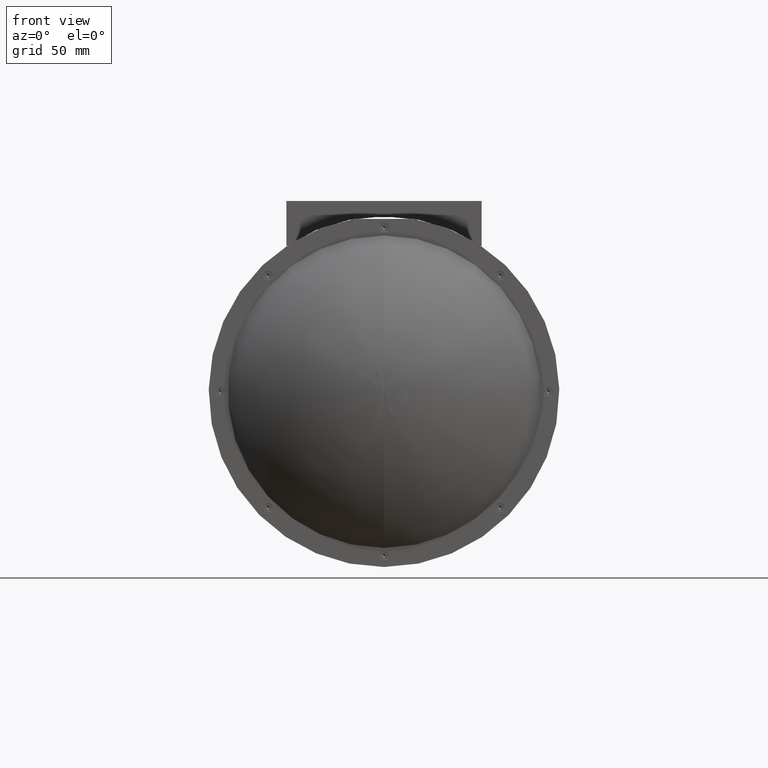
[diagram: clean part render]
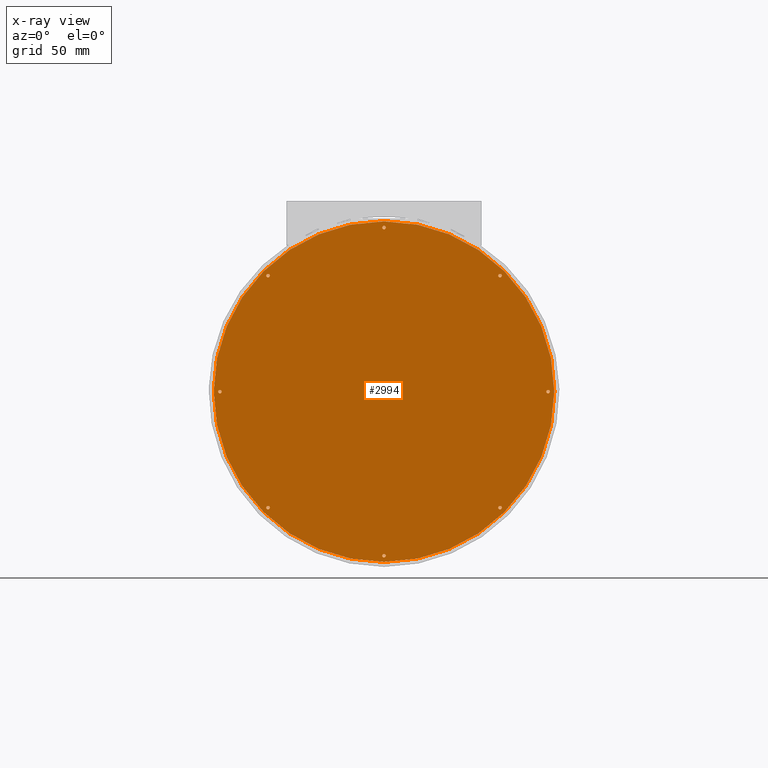
[diagram: x-ray — body ghosted, one internal face saturated and labeled with its STEP entity id]
A machine part, front view, then the same camera in x-ray: the body is ghosted and one INTERNAL B-rep face — a face not visible from any outside direction — is saturated and labeled: STEP entity #2994.
In plain terms, the highlighted planar face has unit normal (0, -1, 0).
Its self-contained STEP definition (entity closure, byte-faithful):
#28 = DIRECTION ( 'NONE',  ( 0.0000000000000000000, 0.0000000000000000000, -1.000000000000000000 ) ) ;
#317 = ORIENTED_EDGE ( 'NONE', *, *, #31842, .F. ) ;
#770 = EDGE_CURVE ( 'NONE', #14489, #25004, #29227, .T. ) ;
#842 = EDGE_CURVE ( 'NONE', #6582, #30998, #20655, .T. ) ;
#867 = EDGE_CURVE ( 'NONE', #3711, #26214, #6989, .T. ) ;
#878 = DIRECTION ( 'NONE',  ( 0.0000000000000000000, 0.0000000000000000000, -1.000000000000000000 ) ) ;
#1176 = CARTESIAN_POINT ( 'NONE',  ( -3.886536381357992731, -2.330622844625818146, -1.482054366152422142 ) ) ;
#1236 = CARTESIAN_POINT ( 'NONE',  ( 1.704238327027963074, -2.330622844625818146, 0.7637203422335082648 ) ) ;
#1281 = FACE_BOUND ( 'NONE', #19624, .T. ) ;
#1974 = DIRECTION ( 'NONE',  ( 0.0000000000000000000, -1.000000000000000000, 0.0000000000000000000 ) ) ;
#1979 = CIRCLE ( 'NONE', #37667, 0.03500000000000003803 ) ;
#2429 = CARTESIAN_POINT ( 'NONE',  ( -1.570761672972037504, -2.330622844625818146, 0.7987203422335082958 ) ) ;
#2810 = CARTESIAN_POINT ( 'NONE',  ( -1.570761672972036838, -2.330622844625818146, 4.198720342233507985 ) ) ;
#2882 = EDGE_CURVE ( 'NONE', #18780, #14841, #29286, .T. ) ;
#2971 = EDGE_LOOP ( 'NONE', ( #40063, #9384 ) ) ;
#2994 = ADVANCED_FACE ( 'NONE', ( #19142, #31297, #15358, #10724, #1281, #25192, #38810, #8199, #32131 ), #4861, .T. ) ;
#3013 = DIRECTION ( 'NONE',  ( 0.0000000000000000000, 0.0000000000000000000, -1.000000000000000000 ) ) ;
#3635 = DIRECTION ( 'NONE',  ( 0.0000000000000000000, 0.0000000000000000000, -1.000000000000000000 ) ) ;
#3711 = VERTEX_POINT ( 'NONE', #35145 ) ;
#3981 = ORIENTED_EDGE ( 'NONE', *, *, #5105, .F. ) ;
#4370 = CIRCLE ( 'NONE', #40768, 0.03500000000000003803 ) ;
#4623 = ORIENTED_EDGE ( 'NONE', *, *, #770, .F. ) ;
#4861 = PLANE ( 'NONE',  #26453 ) ;
#5105 = EDGE_CURVE ( 'NONE', #29748, #5290, #25497, .T. ) ;
#5121 = CARTESIAN_POINT ( 'NONE',  ( -1.570761672972037504, -2.330622844625818146, 0.7987203422335082958 ) ) ;
#5226 = DIRECTION ( 'NONE',  ( -0.0000000000000000000, -1.000000000000000000, -0.0000000000000000000 ) ) ;
#5290 = VERTEX_POINT ( 'NONE', #39979 ) ;
#5522 = DIRECTION ( 'NONE',  ( -0.0000000000000000000, -1.000000000000000000, -0.0000000000000000000 ) ) ;
#5607 = VERTEX_POINT ( 'NONE', #30482 ) ;
#6104 = DIRECTION ( 'NONE',  ( -0.0000000000000000000, -1.000000000000000000, -0.0000000000000000000 ) ) ;
#6352 = DIRECTION ( 'NONE',  ( 0.0000000000000000000, 0.0000000000000000000, -1.000000000000000000 ) ) ;
#6582 = VERTEX_POINT ( 'NONE', #9548 ) ;
#6969 = AXIS2_PLACEMENT_3D ( 'NONE', #5121, #1974, #39946 ) ;
#6989 = CIRCLE ( 'NONE', #41372, 0.03500000000000003803 ) ;
#7019 = CARTESIAN_POINT ( 'NONE',  ( -3.886536381357993175, -2.330622844625818146, 3.114495050619437766 ) ) ;
#7382 = CARTESIAN_POINT ( 'NONE',  ( -3.886536381357993175, -2.330622844625818146, 3.149495050619437908 ) ) ;
#7833 = ORIENTED_EDGE ( 'NONE', *, *, #17366, .F. ) ;
#8199 = FACE_BOUND ( 'NONE', #2971, .T. ) ;
#8252 = EDGE_LOOP ( 'NONE', ( #3981, #25914 ) ) ;
#8540 = CARTESIAN_POINT ( 'NONE',  ( -1.570761672972037504, -2.330622844625818146, -2.441279657766492139 ) ) ;
#8575 = DIRECTION ( 'NONE',  ( 0.0000000000000000000, 0.0000000000000000000, -1.000000000000000000 ) ) ;
#9384 = ORIENTED_EDGE ( 'NONE', *, *, #40702, .F. ) ;
#9540 = AXIS2_PLACEMENT_3D ( 'NONE', #12335, #22852, #33143 ) ;
#9548 = CARTESIAN_POINT ( 'NONE',  ( -3.886536381357992731, -2.330622844625818146, -1.552054366152422205 ) ) ;
#10577 = DIRECTION ( 'NONE',  ( -0.0000000000000000000, -1.000000000000000000, -0.0000000000000000000 ) ) ;
#10724 = FACE_BOUND ( 'NONE', #11269, .T. ) ;
#10789 = CARTESIAN_POINT ( 'NONE',  ( -3.886536381357992731, -2.330622844625818146, -1.517054366152422284 ) ) ;
#10878 = ORIENTED_EDGE ( 'NONE', *, *, #35309, .F. ) ;
#10911 = CIRCLE ( 'NONE', #33053, 0.03500000000000003803 ) ;
#11149 = AXIS2_PLACEMENT_3D ( 'NONE', #12837, #19328, #3013 ) ;
#11159 = AXIS2_PLACEMENT_3D ( 'NONE', #22200, #5226, #8575 ) ;
#11269 = EDGE_LOOP ( 'NONE', ( #25789, #10878 ) ) ;
#12335 = CARTESIAN_POINT ( 'NONE',  ( -1.570761672972037504, -2.330622844625818146, -2.476279657766492281 ) ) ;
#12598 = CIRCLE ( 'NONE', #11159, 0.03500000000000003803 ) ;
#12801 = ORIENTED_EDGE ( 'NONE', *, *, #37612, .F. ) ;
#12837 = CARTESIAN_POINT ( 'NONE',  ( 0.7450130354139171684, -2.330622844625818146, 3.114495050619439542 ) ) ;
#13136 = DIRECTION ( 'NONE',  ( 0.0000000000000000000, -1.000000000000000000, 0.0000000000000000000 ) ) ;
#13235 = DIRECTION ( 'NONE',  ( -0.0000000000000000000, -1.000000000000000000, -0.0000000000000000000 ) ) ;
#13484 = EDGE_CURVE ( 'NONE', #5290, #29748, #20592, .T. ) ;
#13498 = AXIS2_PLACEMENT_3D ( 'NONE', #39842, #6104, #25803 ) ;
#13661 = ORIENTED_EDGE ( 'NONE', *, *, #38826, .T. ) ;
#14165 = CIRCLE ( 'NONE', #37007, 3.399999999999999911 ) ;
#14489 = VERTEX_POINT ( 'NONE', #1236 ) ;
#14589 = DIRECTION ( 'NONE',  ( 0.0000000000000000000, 0.0000000000000000000, -1.000000000000000000 ) ) ;
#14620 = AXIS2_PLACEMENT_3D ( 'NONE', #7019, #20664, #40783 ) ;
#14841 = VERTEX_POINT ( 'NONE', #32529 ) ;
#15168 = DIRECTION ( 'NONE',  ( 0.0000000000000000000, 0.0000000000000000000, -1.000000000000000000 ) ) ;
#15358 = FACE_BOUND ( 'NONE', #30895, .T. ) ;
#15384 = CARTESIAN_POINT ( 'NONE',  ( 1.704238327027963074, -2.330622844625818146, 0.7987203422335082958 ) ) ;
#15690 = CIRCLE ( 'NONE', #21357, 0.03500000000000003803 ) ;
#15849 = DIRECTION ( 'NONE',  ( 0.0000000000000000000, 0.0000000000000000000, -1.000000000000000000 ) ) ;
#17260 = CIRCLE ( 'NONE', #27286, 0.03500000000000003803 ) ;
#17366 = EDGE_CURVE ( 'NONE', #14841, #18780, #12598, .T. ) ;
#17498 = CARTESIAN_POINT ( 'NONE',  ( -1.570761672972037504, -2.330622844625818146, -2.476279657766492281 ) ) ;
#17834 = CARTESIAN_POINT ( 'NONE',  ( -1.570761672972037504, -2.330622844625818146, 4.108720342233509015 ) ) ;
#17904 = ORIENTED_EDGE ( 'NONE', *, *, #33473, .F. ) ;
#18235 = EDGE_CURVE ( 'NONE', #19975, #41609, #37655, .T. ) ;
#18500 = CARTESIAN_POINT ( 'NONE',  ( -1.570761672972037504, -2.330622844625818146, 0.7987203422335082958 ) ) ;
#18701 = VERTEX_POINT ( 'NONE', #23291 ) ;
#18780 = VERTEX_POINT ( 'NONE', #23947 ) ;
#18837 = CIRCLE ( 'NONE', #9540, 0.03500000000000003803 ) ;
#19142 = FACE_BOUND ( 'NONE', #40792, .T. ) ;
#19328 = DIRECTION ( 'NONE',  ( -0.0000000000000000000, -1.000000000000000000, -0.0000000000000000000 ) ) ;
#19624 = EDGE_LOOP ( 'NONE', ( #4623, #12801 ) ) ;
#19975 = VERTEX_POINT ( 'NONE', #34911 ) ;
#20410 = CARTESIAN_POINT ( 'NONE',  ( -4.845761672972037637, -2.330622844625818146, 0.7987203422335078518 ) ) ;
#20592 = CIRCLE ( 'NONE', #39858, 0.03500000000000003803 ) ;
#20615 = CARTESIAN_POINT ( 'NONE',  ( -1.570761672972037504, -2.330622844625818146, 4.073720342233508873 ) ) ;
#20655 = CIRCLE ( 'NONE', #22795, 0.03500000000000003803 ) ;
#20664 = DIRECTION ( 'NONE',  ( -0.0000000000000000000, -1.000000000000000000, -0.0000000000000000000 ) ) ;
#21339 = CARTESIAN_POINT ( 'NONE',  ( 1.704238327027963074, -2.330622844625818146, 0.8337203422335083269 ) ) ;
#21357 = AXIS2_PLACEMENT_3D ( 'NONE', #22868, #33155, #32950 ) ;
#21514 = DIRECTION ( 'NONE',  ( 0.0000000000000000000, 0.0000000000000000000, -1.000000000000000000 ) ) ;
#21545 = VERTEX_POINT ( 'NONE', #7382 ) ;
#22200 = CARTESIAN_POINT ( 'NONE',  ( 0.7450130354139186117, -2.330622844625818146, -1.517054366152421396 ) ) ;
#22481 = CIRCLE ( 'NONE', #11149, 0.03500000000000003803 ) ;
#22640 = EDGE_LOOP ( 'NONE', ( #25041, #13661 ) ) ;
#22795 = AXIS2_PLACEMENT_3D ( 'NONE', #41178, #13235, #3635 ) ;
#22851 = AXIS2_PLACEMENT_3D ( 'NONE', #41364, #28569, #29001 ) ;
#22852 = DIRECTION ( 'NONE',  ( -0.0000000000000000000, -1.000000000000000000, -0.0000000000000000000 ) ) ;
#22868 = CARTESIAN_POINT ( 'NONE',  ( 0.7450130354139171684, -2.330622844625818146, 3.114495050619439542 ) ) ;
#22938 = EDGE_CURVE ( 'NONE', #28289, #18701, #15690, .T. ) ;
#22971 = ORIENTED_EDGE ( 'NONE', *, *, #867, .F. ) ;
#23291 = CARTESIAN_POINT ( 'NONE',  ( 0.7450130354139171684, -2.330622844625818146, 3.149495050619439684 ) ) ;
#23947 = CARTESIAN_POINT ( 'NONE',  ( 0.7450130354139186117, -2.330622844625818146, -1.552054366152421538 ) ) ;
#24049 = AXIS2_PLACEMENT_3D ( 'NONE', #37342, #33988, #28 ) ;
#25004 = VERTEX_POINT ( 'NONE', #21339 ) ;
#25041 = ORIENTED_EDGE ( 'NONE', *, *, #18235, .T. ) ;
#25096 = DIRECTION ( 'NONE',  ( -0.0000000000000000000, -1.000000000000000000, -0.0000000000000000000 ) ) ;
#25192 = FACE_BOUND ( 'NONE', #29790, .T. ) ;
#25483 = VERTEX_POINT ( 'NONE', #8540 ) ;
#25497 = CIRCLE ( 'NONE', #24049, 0.03500000000000003803 ) ;
#25789 = ORIENTED_EDGE ( 'NONE', *, *, #22938, .F. ) ;
#25803 = DIRECTION ( 'NONE',  ( 0.0000000000000000000, 0.0000000000000000000, -1.000000000000000000 ) ) ;
#25883 = CIRCLE ( 'NONE', #26592, 0.03500000000000003803 ) ;
#25914 = ORIENTED_EDGE ( 'NONE', *, *, #13484, .F. ) ;
#26214 = VERTEX_POINT ( 'NONE', #17834 ) ;
#26216 = CARTESIAN_POINT ( 'NONE',  ( -1.570761672972037504, -2.330622844625818146, -2.511279657766491979 ) ) ;
#26453 = AXIS2_PLACEMENT_3D ( 'NONE', #18500, #43271, #30100 ) ;
#26592 = AXIS2_PLACEMENT_3D ( 'NONE', #17498, #32030, #14589 ) ;
#27286 = AXIS2_PLACEMENT_3D ( 'NONE', #44144, #30075, #40122 ) ;
#28289 = VERTEX_POINT ( 'NONE', #41203 ) ;
#28569 = DIRECTION ( 'NONE',  ( -0.0000000000000000000, -1.000000000000000000, -0.0000000000000000000 ) ) ;
#29001 = DIRECTION ( 'NONE',  ( 0.0000000000000000000, 0.0000000000000000000, -1.000000000000000000 ) ) ;
#29227 = CIRCLE ( 'NONE', #13498, 0.03500000000000003803 ) ;
#29286 = CIRCLE ( 'NONE', #22851, 0.03500000000000003803 ) ;
#29748 = VERTEX_POINT ( 'NONE', #35156 ) ;
#29790 = EDGE_LOOP ( 'NONE', ( #32180, #7833 ) ) ;
#29906 = ORIENTED_EDGE ( 'NONE', *, *, #32643, .F. ) ;
#30018 = VERTEX_POINT ( 'NONE', #26216 ) ;
#30075 = DIRECTION ( 'NONE',  ( -0.0000000000000000000, -1.000000000000000000, -0.0000000000000000000 ) ) ;
#30100 = DIRECTION ( 'NONE',  ( 0.0000000000000000000, -0.0000000000000000000, -1.000000000000000000 ) ) ;
#30482 = CARTESIAN_POINT ( 'NONE',  ( -3.886536381357993175, -2.330622844625818146, 3.079495050619437624 ) ) ;
#30895 = EDGE_LOOP ( 'NONE', ( #22971, #317 ) ) ;
#30998 = VERTEX_POINT ( 'NONE', #1176 ) ;
#31297 = FACE_BOUND ( 'NONE', #8252, .T. ) ;
#31495 = DIRECTION ( 'NONE',  ( -0.0000000000000000000, -1.000000000000000000, -0.0000000000000000000 ) ) ;
#31842 = EDGE_CURVE ( 'NONE', #26214, #3711, #10911, .T. ) ;
#32030 = DIRECTION ( 'NONE',  ( -0.0000000000000000000, -1.000000000000000000, -0.0000000000000000000 ) ) ;
#32131 = FACE_OUTER_BOUND ( 'NONE', #22640, .T. ) ;
#32180 = ORIENTED_EDGE ( 'NONE', *, *, #2882, .F. ) ;
#32529 = CARTESIAN_POINT ( 'NONE',  ( 0.7450130354139186117, -2.330622844625818146, -1.482054366152421476 ) ) ;
#32643 = EDGE_CURVE ( 'NONE', #30018, #25483, #18837, .T. ) ;
#32950 = DIRECTION ( 'NONE',  ( 0.0000000000000000000, 0.0000000000000000000, -1.000000000000000000 ) ) ;
#33053 = AXIS2_PLACEMENT_3D ( 'NONE', #36142, #5522, #15168 ) ;
#33143 = DIRECTION ( 'NONE',  ( 0.0000000000000000000, 0.0000000000000000000, -1.000000000000000000 ) ) ;
#33155 = DIRECTION ( 'NONE',  ( -0.0000000000000000000, -1.000000000000000000, -0.0000000000000000000 ) ) ;
#33473 = EDGE_CURVE ( 'NONE', #21545, #5607, #33881, .T. ) ;
#33637 = EDGE_LOOP ( 'NONE', ( #29906, #35681 ) ) ;
#33812 = DIRECTION ( 'NONE',  ( 0.0000000000000000000, 0.0000000000000000000, -1.000000000000000000 ) ) ;
#33881 = CIRCLE ( 'NONE', #14620, 0.03500000000000003803 ) ;
#33988 = DIRECTION ( 'NONE',  ( -0.0000000000000000000, -1.000000000000000000, -0.0000000000000000000 ) ) ;
#34911 = CARTESIAN_POINT ( 'NONE',  ( -1.570761672972037504, -2.330622844625818146, -2.601279657766491393 ) ) ;
#35145 = CARTESIAN_POINT ( 'NONE',  ( -1.570761672972037504, -2.330622844625818146, 4.038720342233508731 ) ) ;
#35156 = CARTESIAN_POINT ( 'NONE',  ( -4.845761672972037637, -2.330622844625818146, 0.7637203422335078207 ) ) ;
#35309 = EDGE_CURVE ( 'NONE', #18701, #28289, #22481, .T. ) ;
#35681 = ORIENTED_EDGE ( 'NONE', *, *, #40767, .F. ) ;
#36142 = CARTESIAN_POINT ( 'NONE',  ( -1.570761672972037504, -2.330622844625818146, 4.073720342233508873 ) ) ;
#37007 = AXIS2_PLACEMENT_3D ( 'NONE', #2429, #13136, #15849 ) ;
#37342 = CARTESIAN_POINT ( 'NONE',  ( -4.845761672972037637, -2.330622844625818146, 0.7987203422335078518 ) ) ;
#37371 = DIRECTION ( 'NONE',  ( -0.0000000000000000000, -1.000000000000000000, -0.0000000000000000000 ) ) ;
#37612 = EDGE_CURVE ( 'NONE', #25004, #14489, #1979, .T. ) ;
#37655 = CIRCLE ( 'NONE', #6969, 3.399999999999999911 ) ;
#37667 = AXIS2_PLACEMENT_3D ( 'NONE', #15384, #31495, #878 ) ;
#38810 = FACE_BOUND ( 'NONE', #33637, .T. ) ;
#38826 = EDGE_CURVE ( 'NONE', #41609, #19975, #14165, .T. ) ;
#39842 = CARTESIAN_POINT ( 'NONE',  ( 1.704238327027963074, -2.330622844625818146, 0.7987203422335082958 ) ) ;
#39858 = AXIS2_PLACEMENT_3D ( 'NONE', #20410, #10577, #6352 ) ;
#39946 = DIRECTION ( 'NONE',  ( 0.0000000000000000000, 0.0000000000000000000, -1.000000000000000000 ) ) ;
#39979 = CARTESIAN_POINT ( 'NONE',  ( -4.845761672972037637, -2.330622844625818146, 0.8337203422335079939 ) ) ;
#40063 = ORIENTED_EDGE ( 'NONE', *, *, #842, .F. ) ;
#40122 = DIRECTION ( 'NONE',  ( 0.0000000000000000000, 0.0000000000000000000, -1.000000000000000000 ) ) ;
#40702 = EDGE_CURVE ( 'NONE', #30998, #6582, #4370, .T. ) ;
#40767 = EDGE_CURVE ( 'NONE', #25483, #30018, #25883, .T. ) ;
#40768 = AXIS2_PLACEMENT_3D ( 'NONE', #10789, #25096, #21514 ) ;
#40783 = DIRECTION ( 'NONE',  ( 0.0000000000000000000, 0.0000000000000000000, -1.000000000000000000 ) ) ;
#40792 = EDGE_LOOP ( 'NONE', ( #41939, #17904 ) ) ;
#41178 = CARTESIAN_POINT ( 'NONE',  ( -3.886536381357992731, -2.330622844625818146, -1.517054366152422284 ) ) ;
#41203 = CARTESIAN_POINT ( 'NONE',  ( 0.7450130354139171684, -2.330622844625818146, 3.079495050619439400 ) ) ;
#41364 = CARTESIAN_POINT ( 'NONE',  ( 0.7450130354139186117, -2.330622844625818146, -1.517054366152421396 ) ) ;
#41372 = AXIS2_PLACEMENT_3D ( 'NONE', #20615, #37371, #33812 ) ;
#41553 = EDGE_CURVE ( 'NONE', #5607, #21545, #17260, .T. ) ;
#41609 = VERTEX_POINT ( 'NONE', #2810 ) ;
#41939 = ORIENTED_EDGE ( 'NONE', *, *, #41553, .F. ) ;
#43271 = DIRECTION ( 'NONE',  ( 0.0000000000000000000, -1.000000000000000000, 0.0000000000000000000 ) ) ;
#44144 = CARTESIAN_POINT ( 'NONE',  ( -3.886536381357993175, -2.330622844625818146, 3.114495050619437766 ) ) ;